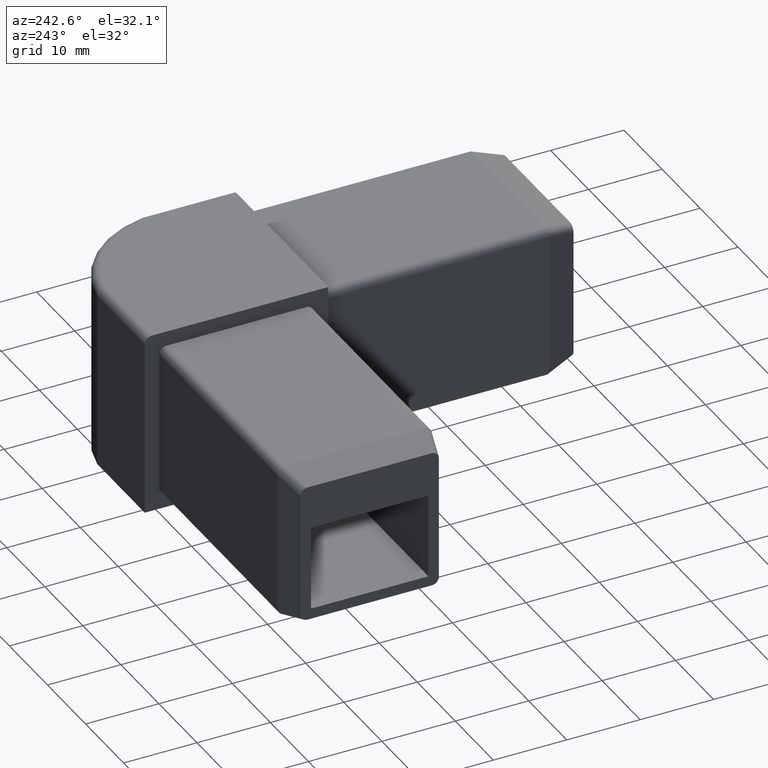
[diagram: clean part render]
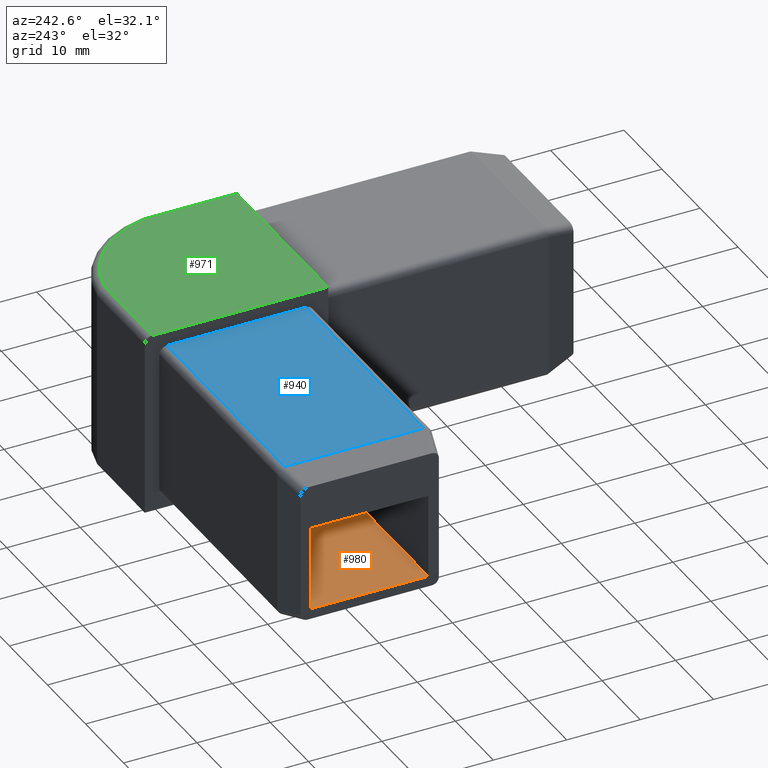
[diagram: same view with three faces highlighted in distinct colors, each labeled with its STEP entity id]
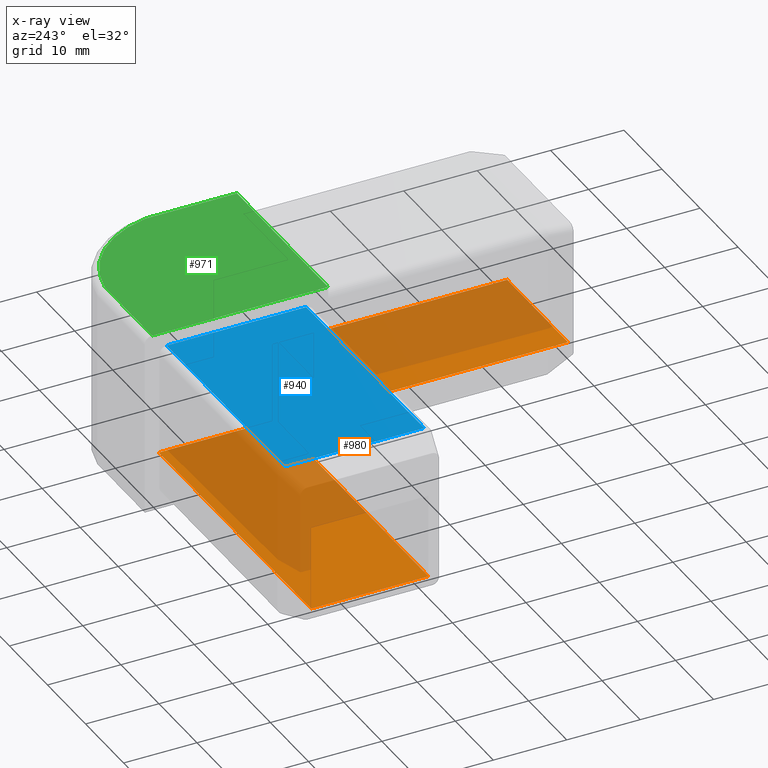
[diagram: x-ray of the same camera — body ghosted, the three highlighted faces saturated]
A machine part, auxiliary view with three faces highlighted in distinct colors.
The next image is the same camera in x-ray (body ghosted, the three faces saturated) — at least one of them is partly hidden behind the body in this view.
Their STEP definitions:

[orange] entity #980 — the highlighted planar face has unit normal (0, -0, -1).
#47=PLANE('',#1096);
#111=FACE_OUTER_BOUND('',#166,.T.);
#166=EDGE_LOOP('',(#871,#872,#873,#874,#875,#876,#877,#878));
#215=LINE('',#1432,#310);
#260=LINE('',#1578,#355);
#284=LINE('',#1668,#379);
#287=LINE('',#1674,#382);
#289=LINE('',#1679,#384);
#294=LINE('',#1687,#389);
#295=LINE('',#1690,#390);
#296=LINE('',#1691,#391);
#310=VECTOR('',#1137,10.);
#355=VECTOR('',#1284,10.);
#379=VECTOR('',#1352,10.);
#382=VECTOR('',#1357,10.);
#384=VECTOR('',#1361,10.);
#389=VECTOR('',#1370,10.);
#390=VECTOR('',#1373,10.);
#391=VECTOR('',#1374,10.);
#411=VERTEX_POINT('',#1430);
#412=VERTEX_POINT('',#1431);
#459=VERTEX_POINT('',#1571);
#462=VERTEX_POINT('',#1576);
#482=VERTEX_POINT('',#1665);
#484=VERTEX_POINT('',#1672);
#485=VERTEX_POINT('',#1676);
#488=VERTEX_POINT('',#1689);
#507=EDGE_CURVE('',#411,#412,#215,.T.);
#580=EDGE_CURVE('',#462,#459,#260,.T.);
#614=EDGE_CURVE('',#459,#482,#284,.T.);
#617=EDGE_CURVE('',#462,#484,#287,.T.);
#619=EDGE_CURVE('',#484,#485,#289,.T.);
#624=EDGE_CURVE('',#411,#482,#294,.T.);
#625=EDGE_CURVE('',#485,#488,#295,.T.);
#626=EDGE_CURVE('',#412,#488,#296,.T.);
#871=ORIENTED_EDGE('',*,*,#625,.T.);
#872=ORIENTED_EDGE('',*,*,#626,.F.);
#873=ORIENTED_EDGE('',*,*,#507,.F.);
#874=ORIENTED_EDGE('',*,*,#624,.T.);
#875=ORIENTED_EDGE('',*,*,#614,.F.);
#876=ORIENTED_EDGE('',*,*,#580,.F.);
#877=ORIENTED_EDGE('',*,*,#617,.T.);
#878=ORIENTED_EDGE('',*,*,#619,.T.);
#980=ADVANCED_FACE('',(#111),#47,.F.);
#1096=AXIS2_PLACEMENT_3D('',#1688,#1371,#1372);
#1137=DIRECTION('',(0.,1.,-5.55111512312578E-16));
#1284=DIRECTION('',(-1.,0.,0.));
#1352=DIRECTION('',(0.,1.,0.));
#1357=DIRECTION('',(0.,1.,0.));
#1361=DIRECTION('',(-1.,0.,0.));
#1370=DIRECTION('',(1.,0.,0.));
#1371=DIRECTION('center_axis',(0.,-5.55111512312578E-16,-1.));
#1372=DIRECTION('ref_axis',(0.,1.,-5.55111512312578E-16));
#1373=DIRECTION('',(0.,1.,-5.55111512312578E-16));
#1374=DIRECTION('',(1.,0.,0.));
#1430=CARTESIAN_POINT('',(-47.5,-8.,-7.99999999999999));
#1431=CARTESIAN_POINT('',(-47.5,8.00000000000001,-8.));
#1432=CARTESIAN_POINT('',(-47.5,-4.,-8.));
#1571=CARTESIAN_POINT('',(-8.,-47.5,-8.));
#1576=CARTESIAN_POINT('',(8.,-47.5,-8.));
#1578=CARTESIAN_POINT('',(4.,-47.5,-8.));
#1665=CARTESIAN_POINT('',(-8.,-8.,-7.99999999999999));
#1668=CARTESIAN_POINT('',(-8.,-47.5,-8.));
#1672=CARTESIAN_POINT('',(8.,-7.5,-8.));
#1674=CARTESIAN_POINT('',(8.,-47.5,-8.));
#1676=CARTESIAN_POINT('',(-7.5,-7.5,-8.));
#1679=CARTESIAN_POINT('',(8.,-7.5,-8.));
#1687=CARTESIAN_POINT('',(-47.5,-8.,-7.99999999999999));
#1688=CARTESIAN_POINT('Origin',(-47.5,-8.,-7.99999999999999));
#1689=CARTESIAN_POINT('',(-7.5,8.00000000000001,-8.));
#1690=CARTESIAN_POINT('',(-7.5,-8.,-7.99999999999999));
#1691=CARTESIAN_POINT('',(-47.5,8.00000000000001,-8.));

[blue] entity #940 — the highlighted planar face has unit normal (0, 0, 1).
#24=PLANE('',#1021);
#71=FACE_OUTER_BOUND('',#124,.T.);
#124=EDGE_LOOP('',(#661,#662,#663,#664));
#209=LINE('',#1411,#304);
#219=LINE('',#1440,#314);
#221=LINE('',#1446,#316);
#222=LINE('',#1447,#317);
#304=VECTOR('',#1119,10.);
#314=VECTOR('',#1143,10.);
#316=VECTOR('',#1149,10.);
#317=VECTOR('',#1150,10.);
#402=VERTEX_POINT('',#1408);
#403=VERTEX_POINT('',#1410);
#415=VERTEX_POINT('',#1439);
#417=VERTEX_POINT('',#1445);
#496=EDGE_CURVE('',#402,#403,#209,.T.);
#511=EDGE_CURVE('',#403,#415,#219,.T.);
#514=EDGE_CURVE('',#417,#402,#221,.T.);
#515=EDGE_CURVE('',#415,#417,#222,.T.);
#661=ORIENTED_EDGE('',*,*,#496,.F.);
#662=ORIENTED_EDGE('',*,*,#514,.F.);
#663=ORIENTED_EDGE('',*,*,#515,.F.);
#664=ORIENTED_EDGE('',*,*,#511,.F.);
#940=ADVANCED_FACE('',(#71),#24,.T.);
#1021=AXIS2_PLACEMENT_3D('',#1444,#1147,#1148);
#1119=DIRECTION('',(-1.,0.,0.));
#1143=DIRECTION('',(0.,1.,-7.93016446160826E-17));
#1147=DIRECTION('center_axis',(0.,7.93016446160826E-17,1.));
#1148=DIRECTION('ref_axis',(0.,1.,-7.93016446160826E-17));
#1149=DIRECTION('',(0.,-1.,7.93016446160826E-17));
#1150=DIRECTION('',(1.,0.,0.));
#1408=CARTESIAN_POINT('',(-12.5,-9.5,10.5));
#1410=CARTESIAN_POINT('',(-43.5,-9.5,10.5));
#1411=CARTESIAN_POINT('',(-12.5,-9.5,10.5));
#1439=CARTESIAN_POINT('',(-43.5,9.5,10.5));
#1440=CARTESIAN_POINT('',(-43.5,-5.25,10.5));
#1444=CARTESIAN_POINT('Origin',(-12.5,-10.5,10.5));
#1445=CARTESIAN_POINT('',(-12.5,9.5,10.5));
#1446=CARTESIAN_POINT('',(-12.5,1.,10.5));
#1447=CARTESIAN_POINT('',(-12.5,9.5,10.5));

[green] entity #971 — the highlighted planar face has unit normal (0, 0, 1).
#38=PLANE('',#1087);
#64=CIRCLE('',#1084,14.);
#102=FACE_OUTER_BOUND('',#156,.T.);
#156=EDGE_LOOP('',(#819,#820,#821,#822,#823));
#270=LINE('',#1610,#365);
#271=LINE('',#1642,#366);
#273=LINE('',#1648,#368);
#274=LINE('',#1649,#369);
#365=VECTOR('',#1318,10.);
#366=VECTOR('',#1327,10.);
#368=VECTOR('',#1333,10.);
#369=VECTOR('',#1334,10.);
#471=VERTEX_POINT('',#1607);
#472=VERTEX_POINT('',#1609);
#474=VERTEX_POINT('',#1626);
#475=VERTEX_POINT('',#1641);
#477=VERTEX_POINT('',#1647);
#595=EDGE_CURVE('',#471,#472,#270,.T.);
#598=EDGE_CURVE('',#472,#474,#64,.T.);
#600=EDGE_CURVE('',#474,#475,#271,.T.);
#603=EDGE_CURVE('',#471,#477,#273,.T.);
#604=EDGE_CURVE('',#477,#475,#274,.T.);
#819=ORIENTED_EDGE('',*,*,#600,.F.);
#820=ORIENTED_EDGE('',*,*,#598,.F.);
#821=ORIENTED_EDGE('',*,*,#595,.F.);
#822=ORIENTED_EDGE('',*,*,#603,.T.);
#823=ORIENTED_EDGE('',*,*,#604,.T.);
#971=ADVANCED_FACE('',(#102),#38,.T.);
#1084=AXIS2_PLACEMENT_3D('',#1627,#1323,#1324);
#1087=AXIS2_PLACEMENT_3D('',#1646,#1331,#1332);
#1318=DIRECTION('',(1.,0.,0.));
#1323=DIRECTION('center_axis',(0.,0.,-1.));
#1324=DIRECTION('ref_axis',(0.707106781186548,0.707106781186547,0.));
#1327=DIRECTION('',(0.,-1.,0.));
#1331=DIRECTION('center_axis',(0.,0.,1.));
#1332=DIRECTION('ref_axis',(1.,0.,0.));
#1333=DIRECTION('',(0.,-1.,0.));
#1334=DIRECTION('',(1.,0.,0.));
#1607=CARTESIAN_POINT('',(-12.5,11.5,12.5));
#1609=CARTESIAN_POINT('',(-0.0791367363201001,11.5,12.5));
#1610=CARTESIAN_POINT('',(6.25,11.5,12.5));
#1626=CARTESIAN_POINT('',(11.5,-0.0791367363200934,12.5));
#1627=CARTESIAN_POINT('Origin',(-2.3195682505013,-2.3195682505013,12.5));
#1641=CARTESIAN_POINT('',(11.5,-12.5,12.5));
#1642=CARTESIAN_POINT('',(11.5,-6.25,12.5));
#1646=CARTESIAN_POINT('Origin',(0.,0.,12.5));
#1647=CARTESIAN_POINT('',(-12.5,-12.5,12.5));
#1648=CARTESIAN_POINT('',(-12.5,-12.5,12.5));
#1649=CARTESIAN_POINT('',(12.5,-12.5,12.5));